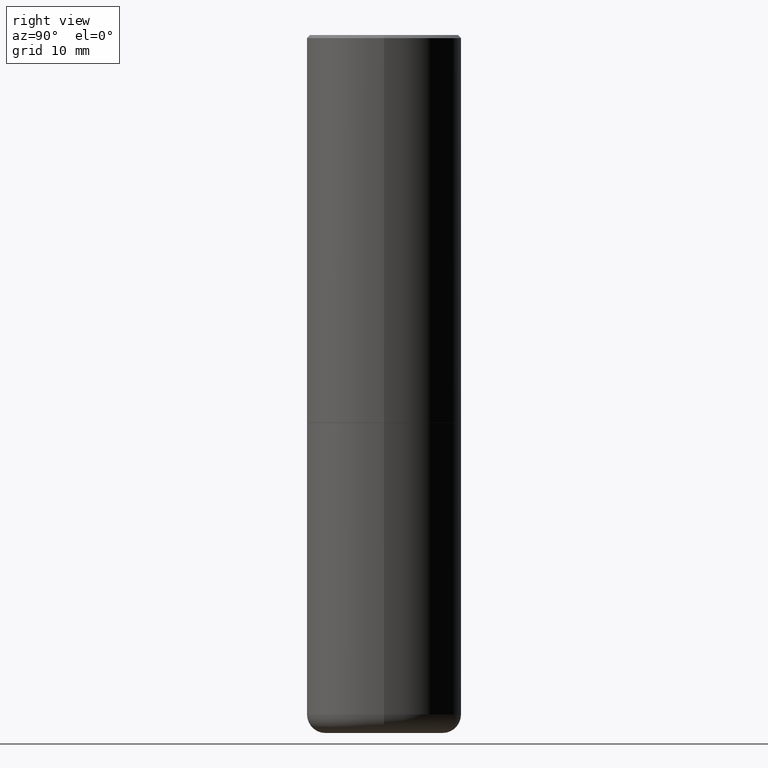
[diagram: clean part render]
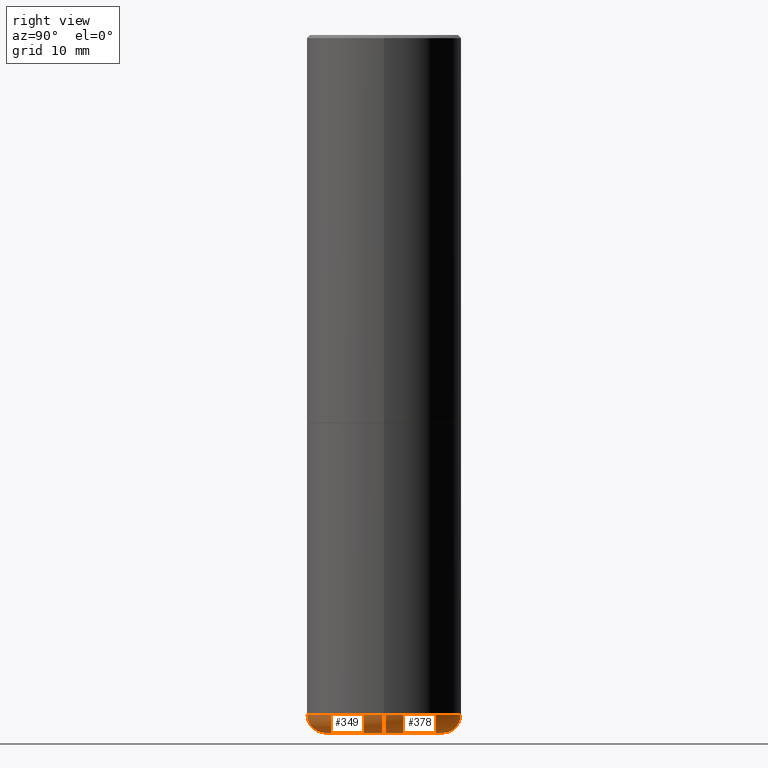
[diagram: same view with one multi-face feature highlighted, each face labeled with its STEP entity id]
A machine part, right view. The highlighted faces form ONE feature: a constant-radius fillet chain: 2 tangent blend faces with common blend radius 3.048 mm. The faces share edges in the B-rep.
Their STEP definitions:
[1] entity #378 (Torus):
#1 = AXIS2_PLACEMENT_3D ( 'NONE', #98, #64, #35 ) ;
#3 = CARTESIAN_POINT ( 'NONE',  ( 0.3799999999999999489, -1.836519184231493383E-14, -4.499999999999999112 ) ) ;
#5 = CARTESIAN_POINT ( 'NONE',  ( -0.4999999999999998335, -1.173997458533247776E-14, -4.379999999999999893 ) ) ;
#6 = DIRECTION ( 'NONE',  ( -2.445468806185136597E-29, 3.491481338843145583E-15, 1.000000000000000000 ) ) ;
#9 = TOROIDAL_SURFACE ( 'NONE', #139, 0.3799999999999999489, 0.1199999999999996764 ) ;
#26 = EDGE_CURVE ( 'NONE', #251, #304, #90, .T. ) ;
#35 = DIRECTION ( 'NONE',  ( 1.000000000000000000, -6.982962677686254878E-15, 0.000000000000000000 ) ) ;
#47 = DIRECTION ( 'NONE',  ( -2.445468806185136597E-29, 3.491481338843145583E-15, 1.000000000000000000 ) ) ;
#64 = DIRECTION ( 'NONE',  ( -6.982962677686266711E-15, -1.000000000000000000, 3.491481338843145583E-15 ) ) ;
#69 = CARTESIAN_POINT ( 'NONE',  ( 1.071115337109089838E-28, -1.529268826413297711E-14, -4.379999999999999893 ) ) ;
#77 = DIRECTION ( 'NONE',  ( -2.445468806185136597E-29, 3.491481338843145583E-15, 1.000000000000000000 ) ) ;
#79 = VERTEX_POINT ( 'NONE', #321 ) ;
#90 = CIRCLE ( 'NONE', #114, 0.1199999999999996764 ) ;
#91 = CIRCLE ( 'NONE', #156, 0.5000000000000001110 ) ;
#98 = CARTESIAN_POINT ( 'NONE',  ( 0.3799999999999999489, -1.794621408165375720E-14, -4.379999999999999893 ) ) ;
#108 = CARTESIAN_POINT ( 'NONE',  ( 1.071115337109089838E-28, -1.529268826413297711E-14, -4.379999999999999893 ) ) ;
#114 = AXIS2_PLACEMENT_3D ( 'NONE', #278, #412, #246 ) ;
#133 = DIRECTION ( 'NONE',  ( 1.000000000000000000, -6.982962677686261977E-15, 0.000000000000000000 ) ) ;
#137 = EDGE_CURVE ( 'NONE', #314, #79, #258, .T. ) ;
#139 = AXIS2_PLACEMENT_3D ( 'NONE', #69, #77, #403 ) ;
#152 = EDGE_CURVE ( 'NONE', #314, #251, #287, .T. ) ;
#156 = AXIS2_PLACEMENT_3D ( 'NONE', #108, #47, #212 ) ;
#157 = CARTESIAN_POINT ( 'NONE',  ( 1.100460962783311244E-28, -1.571166602479415374E-14, -4.499999999999999112 ) ) ;
#166 = FACE_OUTER_BOUND ( 'NONE', #416, .T. ) ;
#206 = CARTESIAN_POINT ( 'NONE',  ( -0.3799999999999999489, -1.237578910711912656E-14, -4.499999999999999112 ) ) ;
#212 = DIRECTION ( 'NONE',  ( 1.000000000000000000, -6.982962677686269077E-15, 0.000000000000000000 ) ) ;
#215 = ORIENTED_EDGE ( 'NONE', *, *, #152, .T. ) ;
#246 = DIRECTION ( 'NONE',  ( -1.000000000000000000, 7.105427357600993970E-15, 0.000000000000000000 ) ) ;
#251 = VERTEX_POINT ( 'NONE', #206 ) ;
#258 = CIRCLE ( 'NONE', #1, 0.1199999999999996764 ) ;
#278 = CARTESIAN_POINT ( 'NONE',  ( -0.3799999999999999489, -1.259262586824459716E-14, -4.379999999999999893 ) ) ;
#287 = CIRCLE ( 'NONE', #372, 0.3799999999999999489 ) ;
#304 = VERTEX_POINT ( 'NONE', #5 ) ;
#313 = ORIENTED_EDGE ( 'NONE', *, *, #366, .F. ) ;
#314 = VERTEX_POINT ( 'NONE', #3 ) ;
#321 = CARTESIAN_POINT ( 'NONE',  ( 0.4999999999999998335, -1.878416960297611046E-14, -4.379999999999999893 ) ) ;
#366 = EDGE_CURVE ( 'NONE', #79, #304, #91, .T. ) ;
#372 = AXIS2_PLACEMENT_3D ( 'NONE', #157, #6, #133 ) ;
#378 = ADVANCED_FACE ( 'NONE', ( #166 ), #9, .T. ) ;
#399 = ORIENTED_EDGE ( 'NONE', *, *, #137, .F. ) ;
#403 = DIRECTION ( 'NONE',  ( 1.000000000000000000, -6.982962677686267499E-15, 4.883557194083114022E-29 ) ) ;
#412 = DIRECTION ( 'NONE',  ( 7.105427357601001859E-15, 1.000000000000000000, -3.491481338843145583E-15 ) ) ;
#416 = EDGE_LOOP ( 'NONE', ( #215, #417, #313, #399 ) ) ;
#417 = ORIENTED_EDGE ( 'NONE', *, *, #26, .T. ) ;
[2] entity #349 (Torus):
#1 = AXIS2_PLACEMENT_3D ( 'NONE', #98, #64, #35 ) ;
#3 = CARTESIAN_POINT ( 'NONE',  ( 0.3799999999999999489, -1.836519184231493383E-14, -4.499999999999999112 ) ) ;
#5 = CARTESIAN_POINT ( 'NONE',  ( -0.4999999999999998335, -1.173997458533247776E-14, -4.379999999999999893 ) ) ;
#18 = ORIENTED_EDGE ( 'NONE', *, *, #137, .T. ) ;
#26 = EDGE_CURVE ( 'NONE', #251, #304, #90, .T. ) ;
#35 = DIRECTION ( 'NONE',  ( 1.000000000000000000, -6.982962677686254878E-15, 0.000000000000000000 ) ) ;
#49 = CARTESIAN_POINT ( 'NONE',  ( 1.071115337109089838E-28, -1.529268826413297711E-14, -4.379999999999999893 ) ) ;
#57 = EDGE_LOOP ( 'NONE', ( #309, #376, #18, #107 ) ) ;
#64 = DIRECTION ( 'NONE',  ( -6.982962677686266711E-15, -1.000000000000000000, 3.491481338843145583E-15 ) ) ;
#79 = VERTEX_POINT ( 'NONE', #321 ) ;
#90 = CIRCLE ( 'NONE', #114, 0.1199999999999996764 ) ;
#93 = EDGE_CURVE ( 'NONE', #251, #314, #221, .T. ) ;
#98 = CARTESIAN_POINT ( 'NONE',  ( 0.3799999999999999489, -1.794621408165375720E-14, -4.379999999999999893 ) ) ;
#107 = ORIENTED_EDGE ( 'NONE', *, *, #296, .F. ) ;
#114 = AXIS2_PLACEMENT_3D ( 'NONE', #278, #412, #246 ) ;
#137 = EDGE_CURVE ( 'NONE', #314, #79, #258, .T. ) ;
#171 = CIRCLE ( 'NONE', #179, 0.5000000000000001110 ) ;
#179 = AXIS2_PLACEMENT_3D ( 'NONE', #49, #255, #320 ) ;
#185 = TOROIDAL_SURFACE ( 'NONE', #368, 0.3799999999999999489, 0.1199999999999996764 ) ;
#187 = DIRECTION ( 'NONE',  ( -2.445468806185136597E-29, 3.491481338843145583E-15, 1.000000000000000000 ) ) ;
#206 = CARTESIAN_POINT ( 'NONE',  ( -0.3799999999999999489, -1.237578910711912656E-14, -4.499999999999999112 ) ) ;
#208 = FACE_OUTER_BOUND ( 'NONE', #57, .T. ) ;
#221 = CIRCLE ( 'NONE', #337, 0.3799999999999999489 ) ;
#246 = DIRECTION ( 'NONE',  ( -1.000000000000000000, 7.105427357600993970E-15, 0.000000000000000000 ) ) ;
#251 = VERTEX_POINT ( 'NONE', #206 ) ;
#255 = DIRECTION ( 'NONE',  ( -2.445468806185136597E-29, 3.491481338843145583E-15, 1.000000000000000000 ) ) ;
#258 = CIRCLE ( 'NONE', #1, 0.1199999999999996764 ) ;
#260 = DIRECTION ( 'NONE',  ( 1.000000000000000000, -6.982962677686261977E-15, 0.000000000000000000 ) ) ;
#267 = DIRECTION ( 'NONE',  ( 1.000000000000000000, -6.982962677686267499E-15, 4.883557194083114022E-29 ) ) ;
#278 = CARTESIAN_POINT ( 'NONE',  ( -0.3799999999999999489, -1.259262586824459716E-14, -4.379999999999999893 ) ) ;
#296 = EDGE_CURVE ( 'NONE', #304, #79, #171, .T. ) ;
#304 = VERTEX_POINT ( 'NONE', #5 ) ;
#308 = DIRECTION ( 'NONE',  ( -2.445468806185136597E-29, 3.491481338843145583E-15, 1.000000000000000000 ) ) ;
#309 = ORIENTED_EDGE ( 'NONE', *, *, #26, .F. ) ;
#314 = VERTEX_POINT ( 'NONE', #3 ) ;
#320 = DIRECTION ( 'NONE',  ( 1.000000000000000000, -6.982962677686269077E-15, 0.000000000000000000 ) ) ;
#321 = CARTESIAN_POINT ( 'NONE',  ( 0.4999999999999998335, -1.878416960297611046E-14, -4.379999999999999893 ) ) ;
#337 = AXIS2_PLACEMENT_3D ( 'NONE', #383, #187, #260 ) ;
#341 = CARTESIAN_POINT ( 'NONE',  ( 1.071115337109089838E-28, -1.529268826413297711E-14, -4.379999999999999893 ) ) ;
#349 = ADVANCED_FACE ( 'NONE', ( #208 ), #185, .T. ) ;
#368 = AXIS2_PLACEMENT_3D ( 'NONE', #341, #308, #267 ) ;
#376 = ORIENTED_EDGE ( 'NONE', *, *, #93, .T. ) ;
#383 = CARTESIAN_POINT ( 'NONE',  ( 1.100460962783311244E-28, -1.571166602479415374E-14, -4.499999999999999112 ) ) ;
#412 = DIRECTION ( 'NONE',  ( 7.105427357601001859E-15, 1.000000000000000000, -3.491481338843145583E-15 ) ) ;